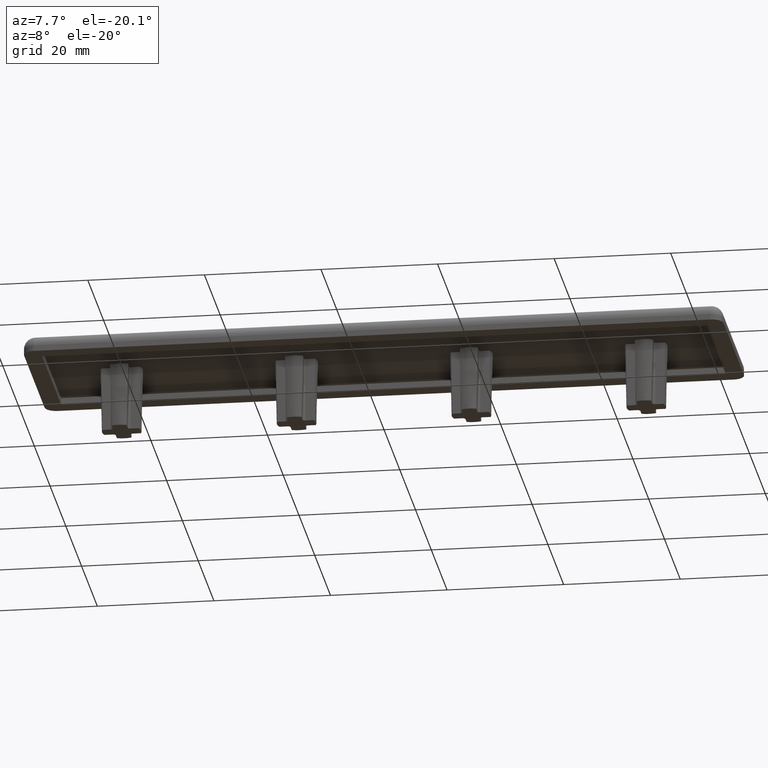
[diagram: clean part render]
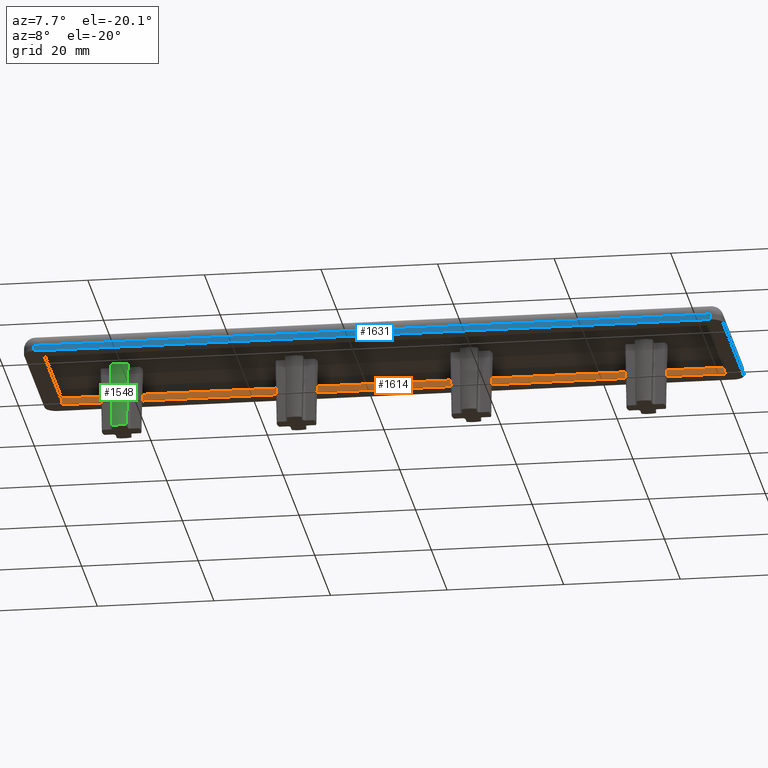
[diagram: same view with three faces highlighted in distinct colors, each labeled with its STEP entity id]
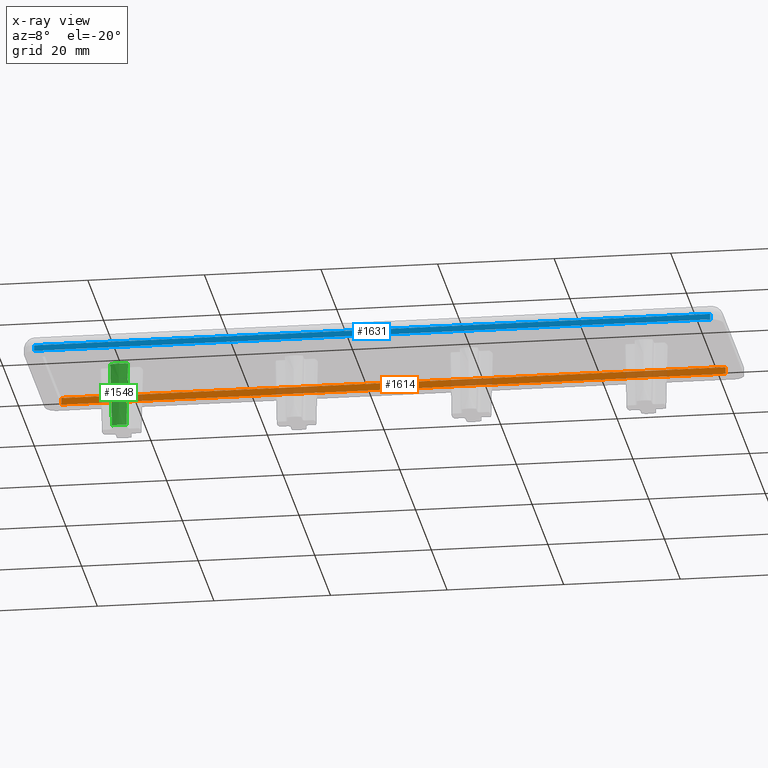
[diagram: x-ray of the same camera — body ghosted, the three highlighted faces saturated]
A machine part, auxiliary view with three faces highlighted in distinct colors.
The next image is the same camera in x-ray (body ghosted, the three faces saturated) — at least one of them is partly hidden behind the body in this view.
Their STEP definitions:

[orange] entity #1614 — the highlighted planar face has unit normal (0, 1, 0).
#104=PLANE('',#1771);
#183=FACE_OUTER_BOUND('',#274,.T.);
#274=EDGE_LOOP('',(#1366,#1367,#1368,#1369));
#401=LINE('',#2748,#529);
#406=LINE('',#2759,#534);
#408=LINE('',#2762,#536);
#409=LINE('',#2763,#537);
#529=VECTOR('',#2179,1.2);
#534=VECTOR('',#2188,1.2);
#536=VECTOR('',#2192,114.);
#537=VECTOR('',#2193,114.);
#767=VERTEX_POINT('',#2742);
#769=VERTEX_POINT('',#2746);
#772=VERTEX_POINT('',#2756);
#773=VERTEX_POINT('',#2758);
#989=EDGE_CURVE('',#767,#769,#401,.T.);
#994=EDGE_CURVE('',#772,#773,#406,.T.);
#996=EDGE_CURVE('',#767,#772,#408,.T.);
#997=EDGE_CURVE('',#769,#773,#409,.T.);
#1366=ORIENTED_EDGE('',*,*,#996,.F.);
#1367=ORIENTED_EDGE('',*,*,#989,.T.);
#1368=ORIENTED_EDGE('',*,*,#997,.T.);
#1369=ORIENTED_EDGE('',*,*,#994,.F.);
#1614=ADVANCED_FACE('',(#183),#104,.F.);
#1771=AXIS2_PLACEMENT_3D('',#2761,#2190,#2191);
#2179=DIRECTION('',(0.,0.,1.));
#2188=DIRECTION('',(0.,0.,1.));
#2190=DIRECTION('center_axis',(1.1686558153949E-16,1.,0.));
#2191=DIRECTION('ref_axis',(-1.,1.77635683940025E-16,0.));
#2192=DIRECTION('',(-1.,1.1686558153949E-16,0.));
#2193=DIRECTION('',(-1.,1.1686558153949E-16,0.));
#2742=CARTESIAN_POINT('',(57.,12.,0.));
#2746=CARTESIAN_POINT('',(57.,12.,1.2));
#2748=CARTESIAN_POINT('',(57.,12.,0.));
#2756=CARTESIAN_POINT('',(-57.,12.,0.));
#2758=CARTESIAN_POINT('',(-57.,12.,1.2));
#2759=CARTESIAN_POINT('',(-57.,12.,0.));
#2761=CARTESIAN_POINT('Origin',(57.,12.,0.));
#2762=CARTESIAN_POINT('',(28.5,12.,0.));
#2763=CARTESIAN_POINT('',(-57.,12.,1.2));

[blue] entity #1631 — the highlighted planar face has unit normal (0, -1, 0).
#109=PLANE('',#1804);
#200=FACE_OUTER_BOUND('',#295,.T.);
#295=EDGE_LOOP('',(#1494,#1495,#1496,#1497));
#410=LINE('',#2775,#538);
#413=LINE('',#2788,#541);
#421=LINE('',#2820,#549);
#425=LINE('',#2828,#553);
#538=VECTOR('',#2208,1.);
#541=VECTOR('',#2223,1.);
#549=VECTOR('',#2263,116.);
#553=VECTOR('',#2275,116.);
#775=VERTEX_POINT('',#2768);
#777=VERTEX_POINT('',#2773);
#778=VERTEX_POINT('',#2778);
#780=VERTEX_POINT('',#2784);
#1002=EDGE_CURVE('',#777,#775,#410,.T.);
#1009=EDGE_CURVE('',#778,#780,#413,.T.);
#1025=EDGE_CURVE('',#775,#778,#421,.T.);
#1029=EDGE_CURVE('',#780,#777,#425,.T.);
#1494=ORIENTED_EDGE('',*,*,#1002,.F.);
#1495=ORIENTED_EDGE('',*,*,#1029,.F.);
#1496=ORIENTED_EDGE('',*,*,#1009,.F.);
#1497=ORIENTED_EDGE('',*,*,#1025,.F.);
#1631=ADVANCED_FACE('',(#200),#109,.T.);
#1804=AXIS2_PLACEMENT_3D('',#2827,#2273,#2274);
#2208=DIRECTION('',(0.,0.,1.));
#2223=DIRECTION('',(0.,0.,-1.));
#2263=DIRECTION('',(1.,7.40148683083438E-17,0.));
#2273=DIRECTION('center_axis',(7.40148683083438E-17,-1.,0.));
#2274=DIRECTION('ref_axis',(1.,0.,0.));
#2275=DIRECTION('',(-1.,-7.40148683083438E-17,0.));
#2768=CARTESIAN_POINT('',(-58.,-15.,1.));
#2773=CARTESIAN_POINT('',(-58.,-15.,0.));
#2775=CARTESIAN_POINT('',(-58.,-15.,0.));
#2778=CARTESIAN_POINT('',(58.,-15.,1.));
#2784=CARTESIAN_POINT('',(58.,-15.,0.));
#2788=CARTESIAN_POINT('',(58.,-15.,0.));
#2820=CARTESIAN_POINT('',(-30.,-15.,1.));
#2827=CARTESIAN_POINT('Origin',(-60.,-15.,0.));
#2828=CARTESIAN_POINT('',(60.,-15.,0.));

[green] entity #1548 — the highlighted conical surface has half-angle 1.5 deg.
#34=(
BOUNDED_CURVE()
B_SPLINE_CURVE(2,(#2320,#2321,#2322),.UNSPECIFIED.,.F.,.F.)
B_SPLINE_CURVE_WITH_KNOTS((3,3),(0.20184727791059,1.32441866958041),
 .UNSPECIFIED.)
CURVE()
GEOMETRIC_REPRESENTATION_ITEM()
RATIONAL_B_SPLINE_CURVE((1.,1.,1.))
REPRESENTATION_ITEM('')
);
#35=(
BOUNDED_CURVE()
B_SPLINE_CURVE(2,(#2328,#2329,#2330),.UNSPECIFIED.,.F.,.F.)
B_SPLINE_CURVE_WITH_KNOTS((3,3),(0.201847277910629,1.32441866958052),
 .UNSPECIFIED.)
CURVE()
GEOMETRIC_REPRESENTATION_ITEM()
RATIONAL_B_SPLINE_CURVE((1.,1.,1.))
REPRESENTATION_ITEM('')
);
#117=FACE_OUTER_BOUND('',#208,.T.);
#208=EDGE_LOOP('',(#1054,#1055,#1056,#1057));
#560=CIRCLE('',#1648,3.66304513726106);
#561=CIRCLE('',#1649,3.375);
#646=VERTEX_POINT('',#2317);
#647=VERTEX_POINT('',#2319);
#648=VERTEX_POINT('',#2325);
#649=VERTEX_POINT('',#2327);
#807=EDGE_CURVE('',#647,#646,#34,.T.);
#809=EDGE_CURVE('',#648,#646,#560,.T.);
#810=EDGE_CURVE('',#649,#648,#35,.T.);
#811=EDGE_CURVE('',#647,#649,#561,.T.);
#1054=ORIENTED_EDGE('',*,*,#809,.F.);
#1055=ORIENTED_EDGE('',*,*,#810,.F.);
#1056=ORIENTED_EDGE('',*,*,#811,.F.);
#1057=ORIENTED_EDGE('',*,*,#807,.T.);
#1513=CONICAL_SURFACE('',#1647,3.375,1.5);
#1548=ADVANCED_FACE('',(#117),#1513,.T.);
#1647=AXIS2_PLACEMENT_3D('',#2324,#1842,#1843);
#1648=AXIS2_PLACEMENT_3D('',#2326,#1844,#1845);
#1649=AXIS2_PLACEMENT_3D('',#2331,#1846,#1847);
#1842=DIRECTION('center_axis',(0.,0.,1.));
#1843=DIRECTION('ref_axis',(-1.,0.,0.));
#1844=DIRECTION('center_axis',(0.,0.,1.));
#1845=DIRECTION('ref_axis',(-1.,0.,0.));
#1846=DIRECTION('center_axis',(0.,0.,-1.));
#1847=DIRECTION('ref_axis',(-1.,0.,0.));
#2317=CARTESIAN_POINT('',(-43.4619548627389,-3.3245024941123,1.2));
#2319=CARTESIAN_POINT('',(-43.75,-3.13498405099612,-9.8));
#2320=CARTESIAN_POINT('Ctrl Pts',(-43.7499999999998,-3.13498405099638,-9.79999999999157));
#2321=CARTESIAN_POINT('Ctrl Pts',(-43.6102029890553,-3.22974327255073,-4.46136753769203));
#2322=CARTESIAN_POINT('Ctrl Pts',(-43.4619548627389,-3.3245024941123,1.2));
#2324=CARTESIAN_POINT('Origin',(-45.,0.,-9.8));
#2325=CARTESIAN_POINT('',(-46.5380451372611,-3.3245024941123,1.2));
#2326=CARTESIAN_POINT('Origin',(-45.,0.,1.2));
#2327=CARTESIAN_POINT('',(-46.25,-3.13498405099612,-9.8));
#2328=CARTESIAN_POINT('Ctrl Pts',(-46.2500000000002,-3.13498405099638,-9.79999999999157));
#2329=CARTESIAN_POINT('Ctrl Pts',(-46.3897970109447,-3.22974327255072,-4.4613675376926));
#2330=CARTESIAN_POINT('Ctrl Pts',(-46.5380451372611,-3.3245024941123,1.2));
#2331=CARTESIAN_POINT('Origin',(-45.,0.,-9.8));